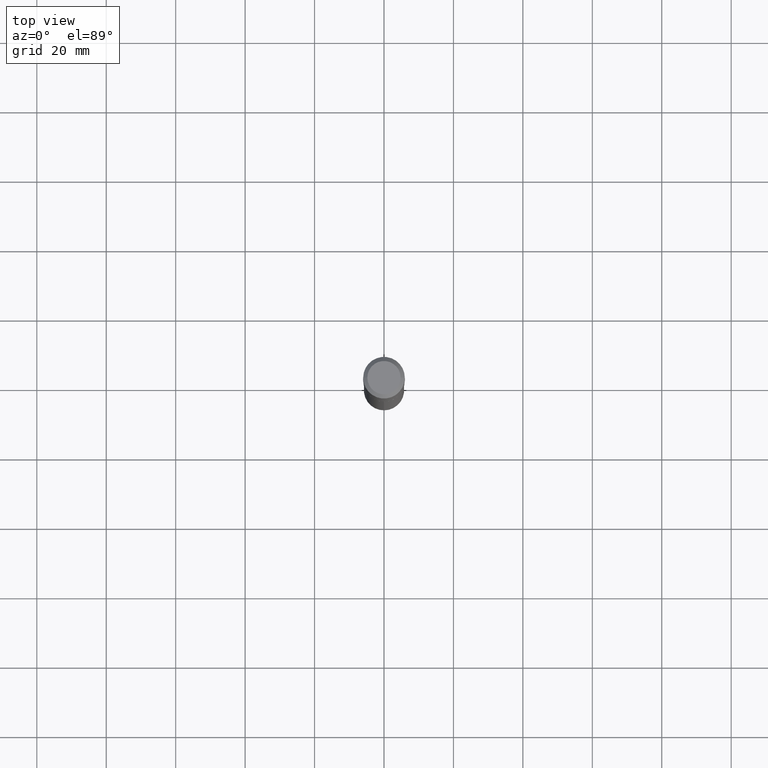
[diagram: clean part render]
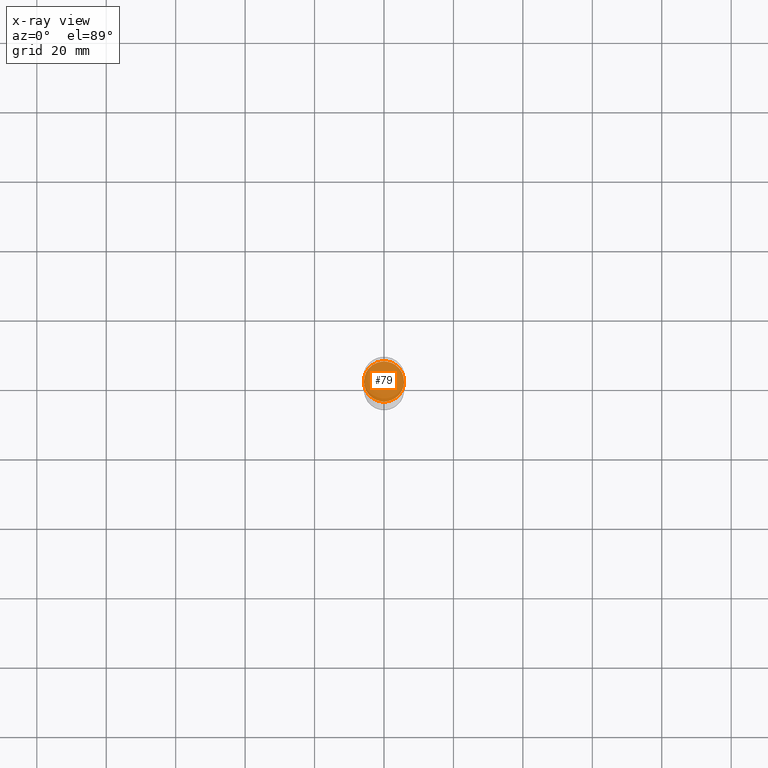
[diagram: x-ray — body ghosted, one internal face saturated and labeled with its STEP entity id]
A machine part, top view, then the same camera in x-ray: the body is ghosted and one INTERNAL B-rep face — a face not visible from any outside direction — is saturated and labeled: STEP entity #79.
In plain terms, the highlighted planar face has unit normal (-0, 0, 1).
Its self-contained STEP definition (entity closure, byte-faithful):
#19 = PLANE ( 'NONE',  #141 ) ;
#31 = DIRECTION ( 'NONE',  ( -2.438088387897960049E-29, 3.491481338843145188E-15, 1.000000000000000000 ) ) ;
#70 = CARTESIAN_POINT ( 'NONE',  ( 6.297326722807346866E-29, -8.990913595654986612E-15, -2.575100000000000833 ) ) ;
#77 = CIRCLE ( 'NONE', #195, 0.2278499999999999970 ) ;
#79 = ADVANCED_FACE ( 'NONE', ( #101 ), #19, .F. ) ;
#80 = DIRECTION ( 'NONE',  ( 1.000000000000000000, -6.982962677686264344E-15, 0.000000000000000000 ) ) ;
#91 = DIRECTION ( 'NONE',  ( -2.445468806185136597E-29, 3.491481338843145583E-15, 1.000000000000000000 ) ) ;
#101 = FACE_OUTER_BOUND ( 'NONE', #165, .T. ) ;
#120 = EDGE_CURVE ( 'NONE', #126, #484, #178, .T. ) ;
#126 = VERTEX_POINT ( 'NONE', #369 ) ;
#141 = AXIS2_PLACEMENT_3D ( 'NONE', #204, #31, #249 ) ;
#165 = EDGE_LOOP ( 'NONE', ( #384, #358 ) ) ;
#178 = CIRCLE ( 'NONE', #312, 0.2278499999999999970 ) ;
#195 = AXIS2_PLACEMENT_3D ( 'NONE', #427, #91, #490 ) ;
#204 = CARTESIAN_POINT ( 'NONE',  ( 6.297326722807346866E-29, -8.990913595654986612E-15, -2.575100000000000833 ) ) ;
#241 = CARTESIAN_POINT ( 'NONE',  ( 0.2278499999999999970, -1.058198164176580255E-14, -2.575100000000000833 ) ) ;
#249 = DIRECTION ( 'NONE',  ( 1.000000000000000000, -6.982962677686265922E-15, 4.876176775795935793E-29 ) ) ;
#312 = AXIS2_PLACEMENT_3D ( 'NONE', #70, #376, #80 ) ;
#358 = ORIENTED_EDGE ( 'NONE', *, *, #120, .F. ) ;
#369 = CARTESIAN_POINT ( 'NONE',  ( -0.2278499999999999970, -7.369292745051487158E-15, -2.575100000000000833 ) ) ;
#376 = DIRECTION ( 'NONE',  ( -2.445468806185136597E-29, 3.491481338843145583E-15, 1.000000000000000000 ) ) ;
#384 = ORIENTED_EDGE ( 'NONE', *, *, #403, .F. ) ;
#403 = EDGE_CURVE ( 'NONE', #484, #126, #77, .T. ) ;
#427 = CARTESIAN_POINT ( 'NONE',  ( 6.297326722807346866E-29, -8.990913595654986612E-15, -2.575100000000000833 ) ) ;
#484 = VERTEX_POINT ( 'NONE', #241 ) ;
#490 = DIRECTION ( 'NONE',  ( 1.000000000000000000, -6.982962677686264344E-15, 0.000000000000000000 ) ) ;